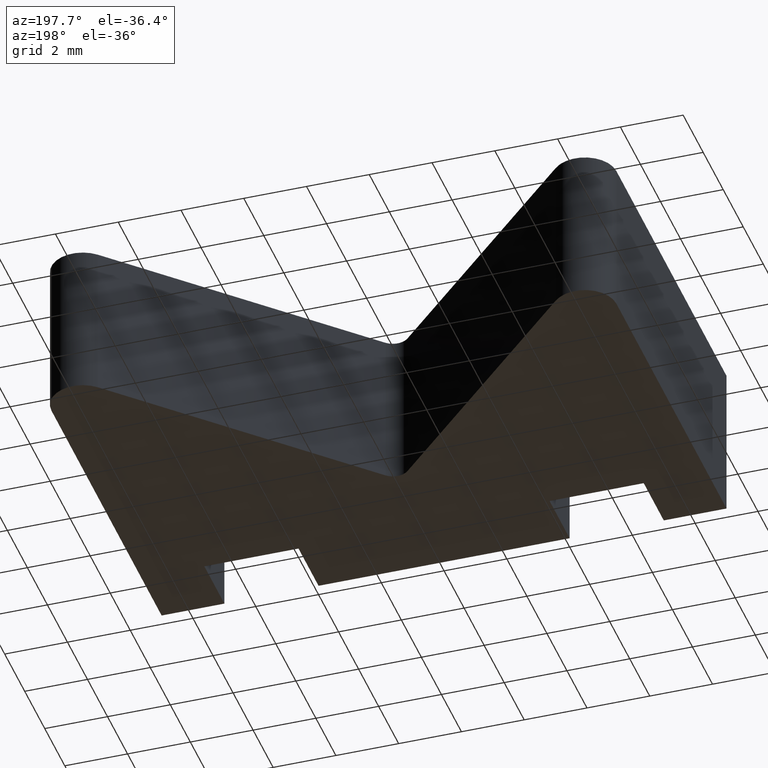
[diagram: clean part render]
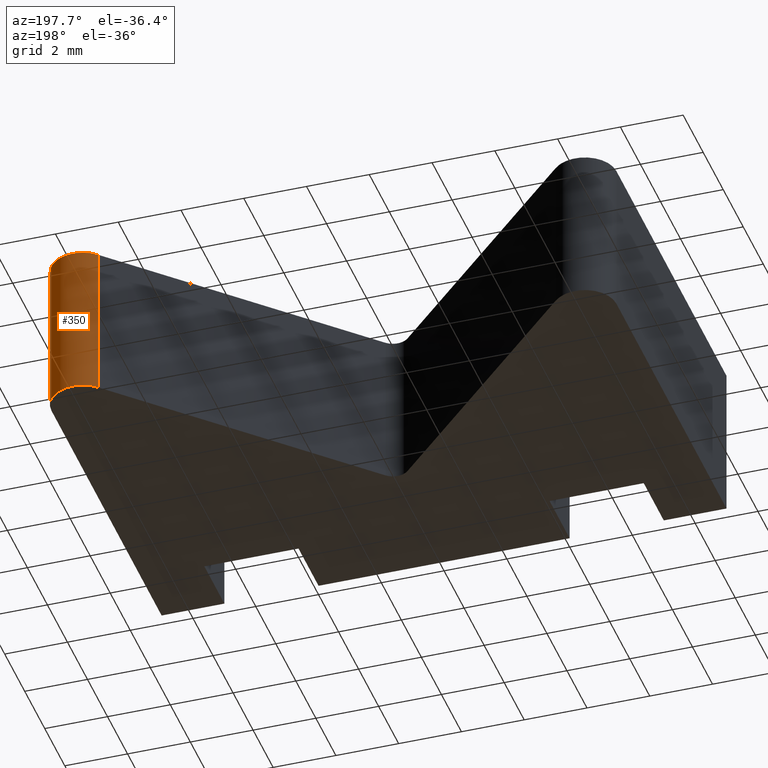
[diagram: same view with one face highlighted and labeled with its STEP entity id]
A machine part, auxiliary view. The second image highlights one B-rep face of the part: STEP entity #350.
In plain terms, the highlighted cylindrical surface (edge-blend (fillet) strip) has radius 1 mm, axis along (0, 0, 1).
Its self-contained STEP definition (entity closure, byte-faithful):
#16=CYLINDRICAL_SURFACE('',#396,1.);
#33=FACE_OUTER_BOUND('',#51,.T.);
#51=EDGE_LOOP('',(#293,#294,#295,#296));
#57=CIRCLE('',#380,1.);
#60=CIRCLE('',#397,1.);
#98=LINE('',#580,#140);
#99=LINE('',#584,#141);
#140=VECTOR('',#478,10.);
#141=VECTOR('',#483,10.);
#146=VERTEX_POINT('',#496);
#160=VERTEX_POINT('',#524);
#174=VERTEX_POINT('',#578);
#175=VERTEX_POINT('',#582);
#192=EDGE_CURVE('',#146,#160,#57,.T.);
#219=EDGE_CURVE('',#174,#160,#98,.T.);
#220=EDGE_CURVE('',#174,#175,#60,.T.);
#221=EDGE_CURVE('',#175,#146,#99,.T.);
#293=ORIENTED_EDGE('',*,*,#220,.T.);
#294=ORIENTED_EDGE('',*,*,#221,.T.);
#295=ORIENTED_EDGE('',*,*,#192,.T.);
#296=ORIENTED_EDGE('',*,*,#219,.F.);
#350=ADVANCED_FACE('',(#33),#16,.T.);
#380=AXIS2_PLACEMENT_3D('',#526,#422,#423);
#396=AXIS2_PLACEMENT_3D('',#581,#479,#480);
#397=AXIS2_PLACEMENT_3D('',#583,#481,#482);
#422=DIRECTION('center_axis',(0.,0.,1.));
#423=DIRECTION('ref_axis',(-1.,0.,0.));
#478=DIRECTION('',(0.,0.,-1.));
#479=DIRECTION('center_axis',(0.,0.,1.));
#480=DIRECTION('ref_axis',(-1.,0.,0.));
#481=DIRECTION('center_axis',(0.,0.,-1.));
#482=DIRECTION('ref_axis',(-1.,0.,0.));
#483=DIRECTION('',(0.,0.,-1.));
#496=CARTESIAN_POINT('',(9.,9.,-2.5));
#524=CARTESIAN_POINT('',(7.29289321881345,9.70710678118655,-2.5));
#526=CARTESIAN_POINT('Origin',(8.,9.,-2.5));
#578=CARTESIAN_POINT('',(7.29289321881345,9.70710678118655,2.5));
#580=CARTESIAN_POINT('',(7.29289321881345,9.70710678118655,0.));
#581=CARTESIAN_POINT('Origin',(8.,9.,0.));
#582=CARTESIAN_POINT('',(9.,9.,2.5));
#583=CARTESIAN_POINT('Origin',(8.,9.,2.5));
#584=CARTESIAN_POINT('',(9.,9.,0.));